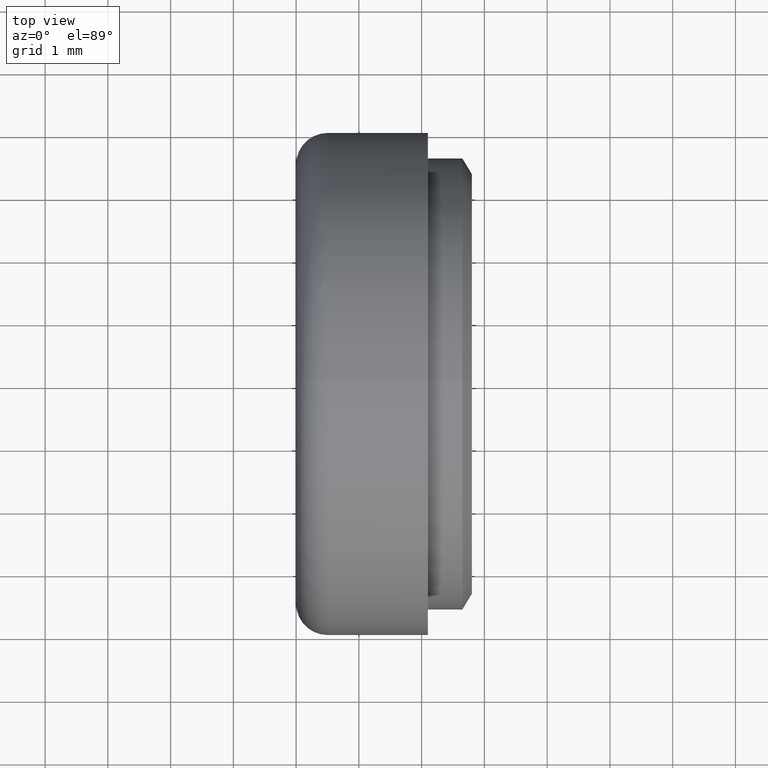
[diagram: clean part render]
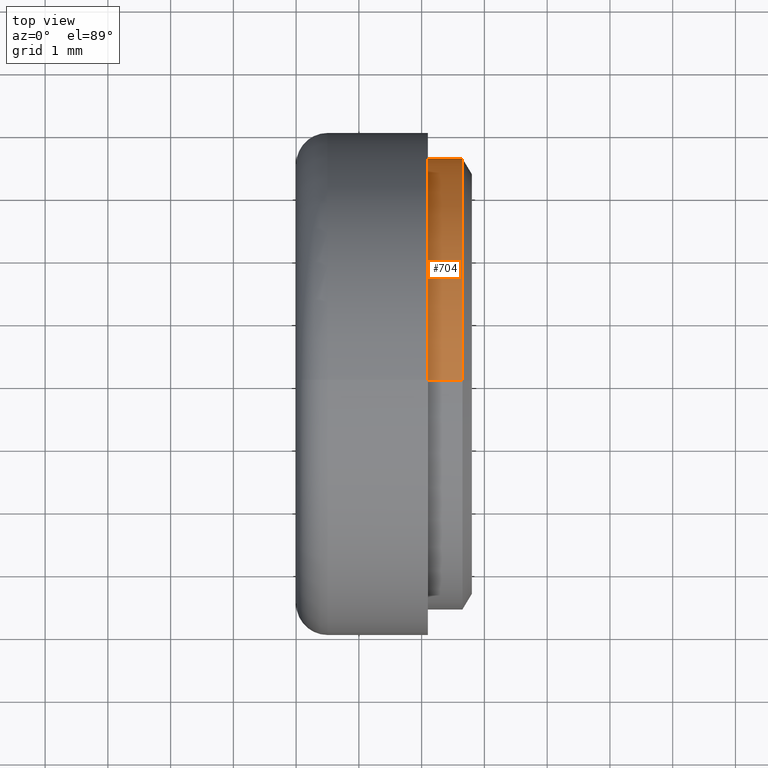
[diagram: same view with one face highlighted and labeled with its STEP entity id]
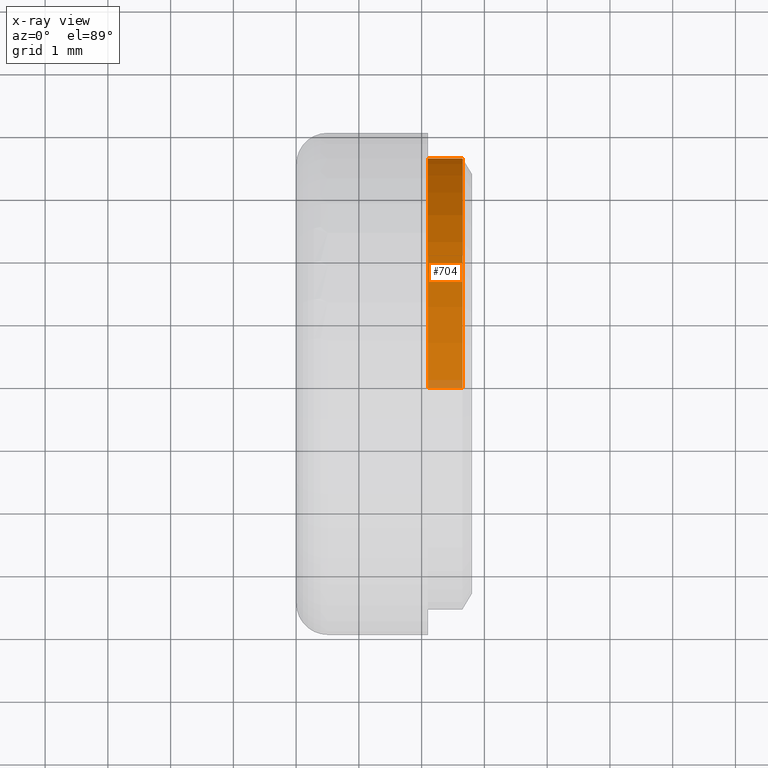
[diagram: x-ray of the same camera — body ghosted, the highlighted face saturated]
A machine part, top view. The second image highlights one B-rep face of the part: STEP entity #704.
The next image is the same camera in x-ray: the body ghosted, the highlighted face saturated — about 3% of this face is hidden behind the body in this view.
In plain terms, the highlighted cylindrical surface (partial cylindrical patch) has radius 3.6 mm, axis along (-1, -0, -0).
Its self-contained STEP definition (entity closure, byte-faithful):
#20 = DIRECTION ( 'NONE',  ( 0.0000000000000000000, 0.0000000000000000000, 1.000000000000000000 ) ) ;
#52 = EDGE_CURVE ( 'NONE', #731, #349, #112, .T. ) ;
#89 = CYLINDRICAL_SURFACE ( 'NONE', #350, 3.600000000000000100 ) ;
#112 = LINE ( 'NONE', #647, #380 ) ;
#124 = CARTESIAN_POINT ( 'NONE',  ( 2.149999999999999000, 4.408728476930471200E-016, -3.600000000000000100 ) ) ;
#138 = EDGE_CURVE ( 'NONE', #286, #349, #409, .T. ) ;
#139 = DIRECTION ( 'NONE',  ( -1.000000000000000000, -0.0000000000000000000, -0.0000000000000000000 ) ) ;
#140 = CARTESIAN_POINT ( 'NONE',  ( 1.600000000000004100, 4.408728476930471200E-016, -3.600000000000000100 ) ) ;
#149 = CARTESIAN_POINT ( 'NONE',  ( 1.600000000000004100, 0.0000000000000000000, 0.0000000000000000000 ) ) ;
#175 = DIRECTION ( 'NONE',  ( 0.0000000000000000000, 0.0000000000000000000, 1.000000000000000000 ) ) ;
#179 = CARTESIAN_POINT ( 'NONE',  ( -88.98999999999999500, 0.0000000000000000000, 3.600000000000000100 ) ) ;
#236 = DIRECTION ( 'NONE',  ( -1.000000000000000000, -0.0000000000000000000, -0.0000000000000000000 ) ) ;
#245 = CARTESIAN_POINT ( 'NONE',  ( 1.600000000000004100, 0.0000000000000000000, 3.600000000000000100 ) ) ;
#249 = FACE_OUTER_BOUND ( 'NONE', #648, .T. ) ;
#265 = VECTOR ( 'NONE', #236, 1000.000000000000000 ) ;
#286 = VERTEX_POINT ( 'NONE', #245 ) ;
#301 = CIRCLE ( 'NONE', #501, 3.600000000000000100 ) ;
#349 = VERTEX_POINT ( 'NONE', #140 ) ;
#350 = AXIS2_PLACEMENT_3D ( 'NONE', #725, #552, #433 ) ;
#380 = VECTOR ( 'NONE', #139, 1000.000000000000000 ) ;
#401 = DIRECTION ( 'NONE',  ( -1.000000000000000000, -0.0000000000000000000, -0.0000000000000000000 ) ) ;
#409 = CIRCLE ( 'NONE', #618, 3.600000000000000100 ) ;
#414 = LINE ( 'NONE', #179, #265 ) ;
#416 = ORIENTED_EDGE ( 'NONE', *, *, #138, .F. ) ;
#433 = DIRECTION ( 'NONE',  ( 0.0000000000000000000, 0.0000000000000000000, 1.000000000000000000 ) ) ;
#501 = AXIS2_PLACEMENT_3D ( 'NONE', #559, #671, #175 ) ;
#552 = DIRECTION ( 'NONE',  ( -1.000000000000000000, -0.0000000000000000000, -0.0000000000000000000 ) ) ;
#559 = CARTESIAN_POINT ( 'NONE',  ( 2.149999999999999000, 0.0000000000000000000, 0.0000000000000000000 ) ) ;
#565 = EDGE_CURVE ( 'NONE', #683, #731, #301, .T. ) ;
#571 = ORIENTED_EDGE ( 'NONE', *, *, #52, .T. ) ;
#618 = AXIS2_PLACEMENT_3D ( 'NONE', #149, #401, #20 ) ;
#628 = ORIENTED_EDGE ( 'NONE', *, *, #565, .T. ) ;
#634 = EDGE_CURVE ( 'NONE', #683, #286, #414, .T. ) ;
#647 = CARTESIAN_POINT ( 'NONE',  ( -88.98999999999999500, 4.408728476930471200E-016, -3.600000000000000100 ) ) ;
#648 = EDGE_LOOP ( 'NONE', ( #628, #571, #416, #656 ) ) ;
#656 = ORIENTED_EDGE ( 'NONE', *, *, #634, .F. ) ;
#671 = DIRECTION ( 'NONE',  ( -1.000000000000000000, -0.0000000000000000000, -0.0000000000000000000 ) ) ;
#678 = CARTESIAN_POINT ( 'NONE',  ( 2.149999999999999000, 0.0000000000000000000, 3.600000000000000100 ) ) ;
#683 = VERTEX_POINT ( 'NONE', #678 ) ;
#704 = ADVANCED_FACE ( 'NONE', ( #249 ), #89, .T. ) ;
#725 = CARTESIAN_POINT ( 'NONE',  ( -88.98999999999999500, 0.0000000000000000000, 0.0000000000000000000 ) ) ;
#731 = VERTEX_POINT ( 'NONE', #124 ) ;